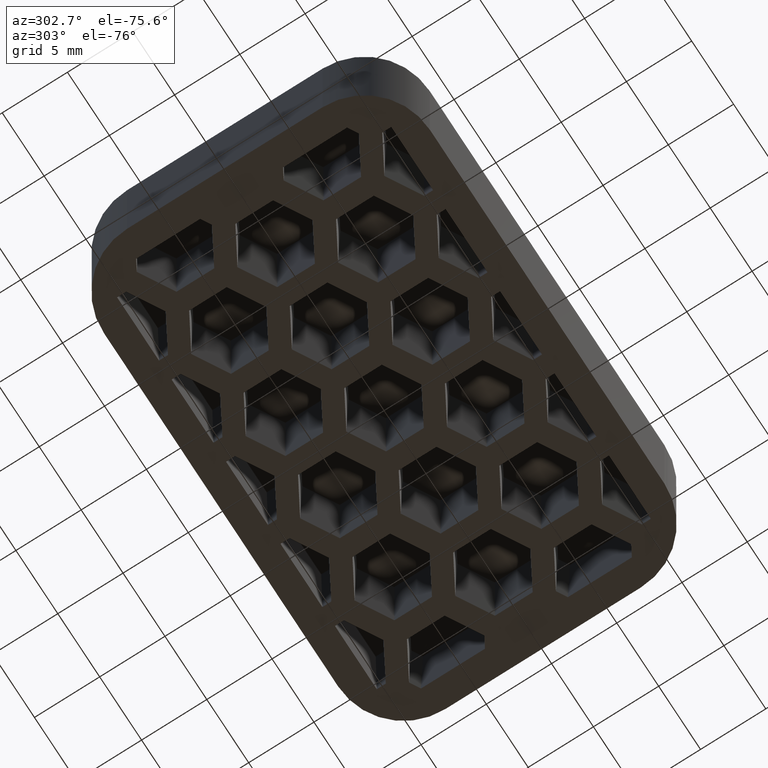
[diagram: clean part render]
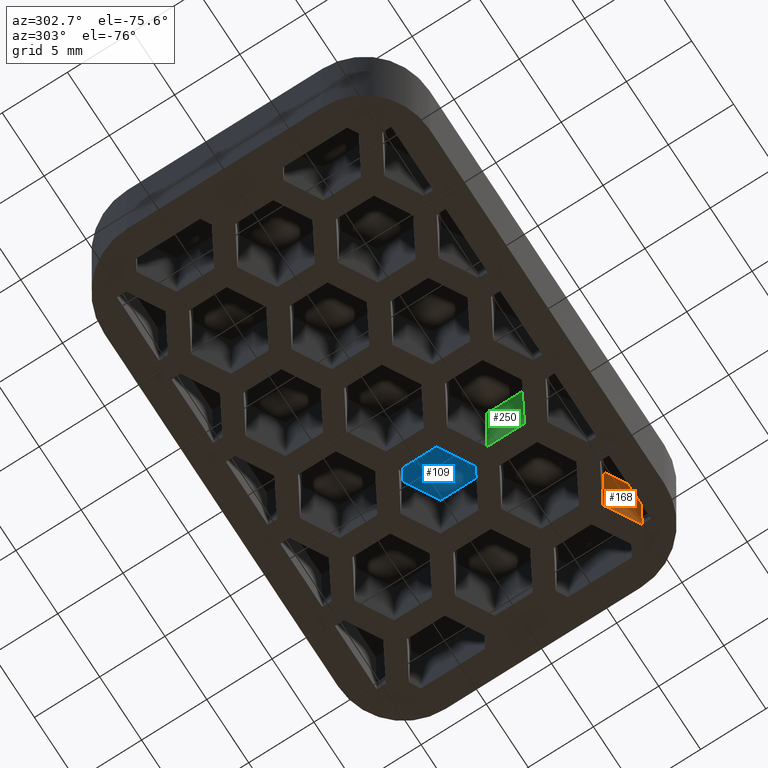
[diagram: same view with three faces highlighted in distinct colors, each labeled with its STEP entity id]
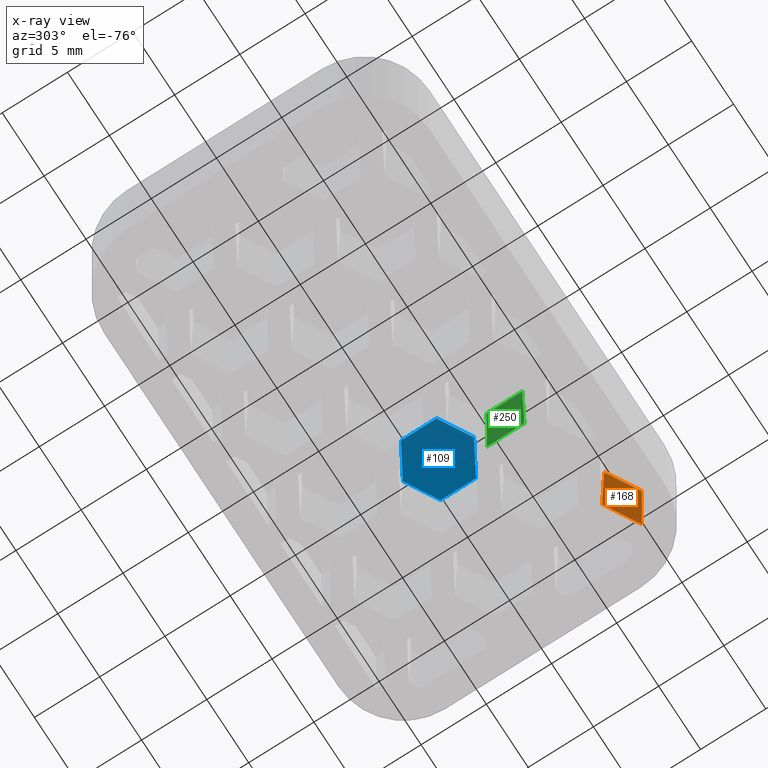
[diagram: x-ray of the same camera — body ghosted, the three highlighted faces saturated]
A machine part, auxiliary view with three faces highlighted in distinct colors.
The next image is the same camera in x-ray (body ghosted, the three faces saturated) — at least one of them is partly hidden behind the body in this view.
Their STEP definitions:

[orange] entity #168 — the highlighted planar face has unit normal (0.4999, 0.8659, 0.0175).
#168 = ADVANCED_FACE( '', ( #524 ), #525, .F. );
#524 = FACE_OUTER_BOUND( '', #1012, .T. );
#525 = PLANE( '', #1013 );
#1012 = EDGE_LOOP( '', ( #2161, #2162, #2163, #2164 ) );
#1013 = AXIS2_PLACEMENT_3D( '', #2165, #2166, #2167 );
#2161 = ORIENTED_EDGE( '', *, *, #3245, .T. );
#2162 = ORIENTED_EDGE( '', *, *, #3538, .F. );
#2163 = ORIENTED_EDGE( '', *, *, #3477, .F. );
#2164 = ORIENTED_EDGE( '', *, *, #3539, .T. );
#2165 = CARTESIAN_POINT( '', ( 2.12514300209739, -2.09264703891412, -6.81076046089914E-015 ) );
#2166 = DIRECTION( '', ( 0.499923847578195, 0.865893503920754, 0.0174524064372835 ) );
#2167 = DIRECTION( '', ( -0.866025403784439, 0.500000000000000, -3.06058338817720E-017 ) );
#3245 = EDGE_CURVE( '', #3963, #3961, #3964, .T. );
#3477 = EDGE_CURVE( '', #4397, #4398, #4399, .T. );
#3538 = EDGE_CURVE( '', #4398, #3961, #4486, .T. );
#3539 = EDGE_CURVE( '', #4397, #3963, #4487, .T. );
#3961 = VERTEX_POINT( '', #5049 );
#3963 = VERTEX_POINT( '', #5052 );
#3964 = LINE( '', #5053, #5054 );
#4397 = VERTEX_POINT( '', #5716 );
#4398 = VERTEX_POINT( '', #5717 );
#4399 = LINE( '', #5718, #5719 );
#4486 = LINE( '', #5864, #5865 );
#4487 = LINE( '', #5866, #5867 );
#5049 = CARTESIAN_POINT( '', ( 15.5000000000000, -9.81462432702593, -6.33794133834445E-015 ) );
#5052 = CARTESIAN_POINT( '', ( 13.0000000000000, -8.37124865405187, -6.42631968934828E-015 ) );
#5053 = CARTESIAN_POINT( '', ( 16.7500000000000, -10.5363121635130, -6.29375216284253E-015 ) );
#5054 = VECTOR( '', #6285, 1000.00000000000 );
#5716 = CARTESIAN_POINT( '', ( 13.0000000000000, -8.53249163701233, 7.99999999999999 ) );
#5717 = CARTESIAN_POINT( '', ( 15.3603594805743, -9.89524581850617, 7.99999999999999 ) );
#5718 = CARTESIAN_POINT( '', ( 16.6801797402871, -10.6572444007333, 7.99999999999999 ) );
#5719 = VECTOR( '', #6521, 1000.00000000000 );
#5864 = CARTESIAN_POINT( '', ( 15.4972844085420, -9.81619217448524, 0.155576130435716 ) );
#5865 = VECTOR( '', #6586, 1000.00000000000 );
#5866 = CARTESIAN_POINT( '', ( 13.0000000000000, -8.37239161663768, 0.0567075882535397 ) );
#5867 = VECTOR( '', #6587, 1000.00000000000 );
#6285 = DIRECTION( '', ( 0.866025403784439, -0.500000000000000, 3.06151588455594E-017 ) );
#6521 = DIRECTION( '', ( 0.866025403784439, -0.500000000000000, 3.06151588455594E-017 ) );
#6586 = DIRECTION( '', ( 0.0174515205435363, 0.0100756400835789, -0.999796942337605 ) );
#6587 = DIRECTION( '', ( -3.00523943436880E-018, 0.0201512801671579, -0.999796942337605 ) );

[blue] entity #109 — the highlighted planar face has unit normal (0, -0, -1).
#109 = ADVANCED_FACE( '', ( #404 ), #405, .T. );
#404 = FACE_OUTER_BOUND( '', #892, .T. );
#405 = PLANE( '', #893 );
#892 = EDGE_LOOP( '', ( #1718, #1719, #1720, #1721, #1722, #1723 ) );
#893 = AXIS2_PLACEMENT_3D( '', #1724, #1725, #1726 );
#1718 = ORIENTED_EDGE( '', *, *, #3361, .T. );
#1719 = ORIENTED_EDGE( '', *, *, #3362, .T. );
#1720 = ORIENTED_EDGE( '', *, *, #3363, .T. );
#1721 = ORIENTED_EDGE( '', *, *, #3364, .T. );
#1722 = ORIENTED_EDGE( '', *, *, #3365, .T. );
#1723 = ORIENTED_EDGE( '', *, *, #3366, .T. );
#1724 = CARTESIAN_POINT( '', ( -17.0000000000000, 10.5000000000000, 7.99999999999999 ) );
#1725 = DIRECTION( '', ( 7.17464813734306E-049, -6.12303176911189E-017, -1.00000000000000 ) );
#1726 = DIRECTION( '', ( -1.02042557410400E-016, 1.00000000000000, -6.12303176911189E-017 ) );
#3361 = EDGE_CURVE( '', #4167, #4168, #4169, .T. );
#3362 = EDGE_CURVE( '', #4168, #4170, #4171, .T. );
#3363 = EDGE_CURVE( '', #4170, #4172, #4173, .T. );
#3364 = EDGE_CURVE( '', #4172, #4174, #4175, .T. );
#3365 = EDGE_CURVE( '', #4174, #4176, #4177, .T. );
#3366 = EDGE_CURVE( '', #4176, #4167, #4178, .T. );
#4167 = VERTEX_POINT( '', #5370 );
#4168 = VERTEX_POINT( '', #5371 );
#4169 = LINE( '', #5372, #5373 );
#4170 = VERTEX_POINT( '', #5374 );
#4171 = LINE( '', #5375, #5376 );
#4172 = VERTEX_POINT( '', #5377 );
#4173 = LINE( '', #5378, #5379 );
#4174 = VERTEX_POINT( '', #5380 );
#4175 = LINE( '', #5381, #5382 );
#4176 = VERTEX_POINT( '', #5383 );
#4177 = LINE( '', #5384, #5385 );
#4178 = LINE( '', #5386, #5387 );
#5370 = CARTESIAN_POINT( '', ( 6.49999999999999, 2.72550836298767, 7.99999999999999 ) );
#5371 = CARTESIAN_POINT( '', ( 8.86035948057426, 1.36275418149383, 7.99999999999999 ) );
#5372 = CARTESIAN_POINT( '', ( 10.1801797402871, 0.600755599266689, 7.99999999999999 ) );
#5373 = VECTOR( '', #6405, 1000.00000000000 );
#5374 = CARTESIAN_POINT( '', ( 8.86035948057425, -1.36275418149383, 7.99999999999999 ) );
#5375 = CARTESIAN_POINT( '', ( 8.86035948057425, -1.44337567297406, 7.99999999999999 ) );
#5376 = VECTOR( '', #6406, 1000.00000000000 );
#5377 = CARTESIAN_POINT( '', ( 6.49999999999999, -2.72550836298767, 7.99999999999999 ) );
#5378 = CARTESIAN_POINT( '', ( 8.93017974028712, -1.32244343575372, 7.99999999999999 ) );
#5379 = VECTOR( '', #6407, 1000.00000000000 );
#5380 = CARTESIAN_POINT( '', ( 4.13964051942573, -1.36275418149383, 7.99999999999999 ) );
#5381 = CARTESIAN_POINT( '', ( 7.81982025971286, -3.48750694521482, 7.99999999999999 ) );
#5382 = VECTOR( '', #6408, 1000.00000000000 );
#5383 = CARTESIAN_POINT( '', ( 4.13964051942573, 1.36275418149383, 7.99999999999999 ) );
#5384 = CARTESIAN_POINT( '', ( 4.13964051942573, -1.44337567297406, 7.99999999999999 ) );
#5385 = VECTOR( '', #6409, 1000.00000000000 );
#5386 = CARTESIAN_POINT( '', ( 6.56982025971286, 2.76581910872778, 7.99999999999999 ) );
#5387 = VECTOR( '', #6410, 1000.00000000000 );
#6405 = DIRECTION( '', ( 0.866025403784439, -0.500000000000000, 3.06151588455594E-017 ) );
#6406 = DIRECTION( '', ( 4.99600361081321E-016, -1.00000000000000, 6.12303176911189E-017 ) );
#6407 = DIRECTION( '', ( -0.866025403784439, -0.500000000000000, 3.06151588455594E-017 ) );
#6408 = DIRECTION( '', ( -0.866025403784439, 0.500000000000000, -3.06151588455594E-017 ) );
#6409 = DIRECTION( '', ( 1.11022302462516E-016, 1.00000000000000, -6.12303176911189E-017 ) );
#6410 = DIRECTION( '', ( 0.866025403784438, 0.500000000000000, -3.06151588455594E-017 ) );

[green] entity #250 — the highlighted planar face has unit normal (0.9998, 0, 0.0175).
#250 = ADVANCED_FACE( '', ( #688 ), #689, .F. );
#688 = FACE_OUTER_BOUND( '', #1176, .T. );
#689 = PLANE( '', #1177 );
#1176 = EDGE_LOOP( '', ( #2735, #2736, #2737, #2738 ) );
#1177 = AXIS2_PLACEMENT_3D( '', #2739, #2740, #2741 );
#2735 = ORIENTED_EDGE( '', *, *, #3187, .T. );
#2736 = ORIENTED_EDGE( '', *, *, #3622, .F. );
#2737 = ORIENTED_EDGE( '', *, *, #3392, .F. );
#2738 = ORIENTED_EDGE( '', *, *, #3617, .T. );
#2739 = CARTESIAN_POINT( '', ( 5.74999999999999, -1.44337567297406, -6.85051555290339E-015 ) );
#2740 = DIRECTION( '', ( 0.999847695156391, 6.67100975759242E-016, 0.0174524064372835 ) );
#2741 = DIRECTION( '', ( -0.0174524064372835, 6.12209920171588E-017, 0.999847695156391 ) );
#3187 = EDGE_CURVE( '', #3846, #3847, #3848, .T. );
#3392 = EDGE_CURVE( '', #4228, #4230, #4231, .T. );
#3617 = EDGE_CURVE( '', #4228, #3846, #4565, .T. );
#3622 = EDGE_CURVE( '', #4230, #3847, #4570, .T. );
#3846 = VERTEX_POINT( '', #4877 );
#3847 = VERTEX_POINT( '', #4878 );
#3848 = LINE( '', #4879, #4880 );
#4228 = VERTEX_POINT( '', #5461 );
#4230 = VERTEX_POINT( '', #5464 );
#4231 = LINE( '', #5465, #5466 );
#4565 = LINE( '', #6022, #6023 );
#4570 = LINE( '', #6032, #6033 );
#4877 = CARTESIAN_POINT( '', ( 5.74999999999999, -4.18578945162478, -6.68259668599611E-015 ) );
#4878 = CARTESIAN_POINT( '', ( 5.75000000000000, -7.07254079757291, -6.50583998398844E-015 ) );
#4879 = CARTESIAN_POINT( '', ( 5.74999999999999, -1.44337567297406, -6.85051555290339E-015 ) );
#4880 = VECTOR( '', #6227, 1000.00000000000 );
#5461 = CARTESIAN_POINT( '', ( 5.61035948057425, -4.26641094310502, 7.99999999999999 ) );
#5464 = CARTESIAN_POINT( '', ( 5.61035948057426, -6.99191930609268, 7.99999999999999 ) );
#5465 = CARTESIAN_POINT( '', ( 5.61035948057425, -1.44337567297406, 7.99999999999999 ) );
#5466 = VECTOR( '', #6436, 1000.00000000000 );
#6022 = CARTESIAN_POINT( '', ( 5.74926399070756, -4.18621438678790, 0.0421659441232003 ) );
#6023 = VECTOR( '', #6665, 1000.00000000000 );
#6032 = CARTESIAN_POINT( '', ( 5.74901019439983, -7.07196933304321, 0.0567059248553427 ) );
#6033 = VECTOR( '', #6670, 1000.00000000000 );
#6227 = DIRECTION( '', ( 6.66133814775094E-016, -1.00000000000000, 6.12303176911189E-017 ) );
#6436 = DIRECTION( '', ( 6.66133814775094E-016, -1.00000000000000, 6.12303176911189E-017 ) );
#6665 = DIRECTION( '', ( 0.0174515205435363, 0.0100756400835789, -0.999796942337605 ) );
#6670 = DIRECTION( '', ( 0.0174515205435363, -0.0100756400835790, -0.999796942337605 ) );